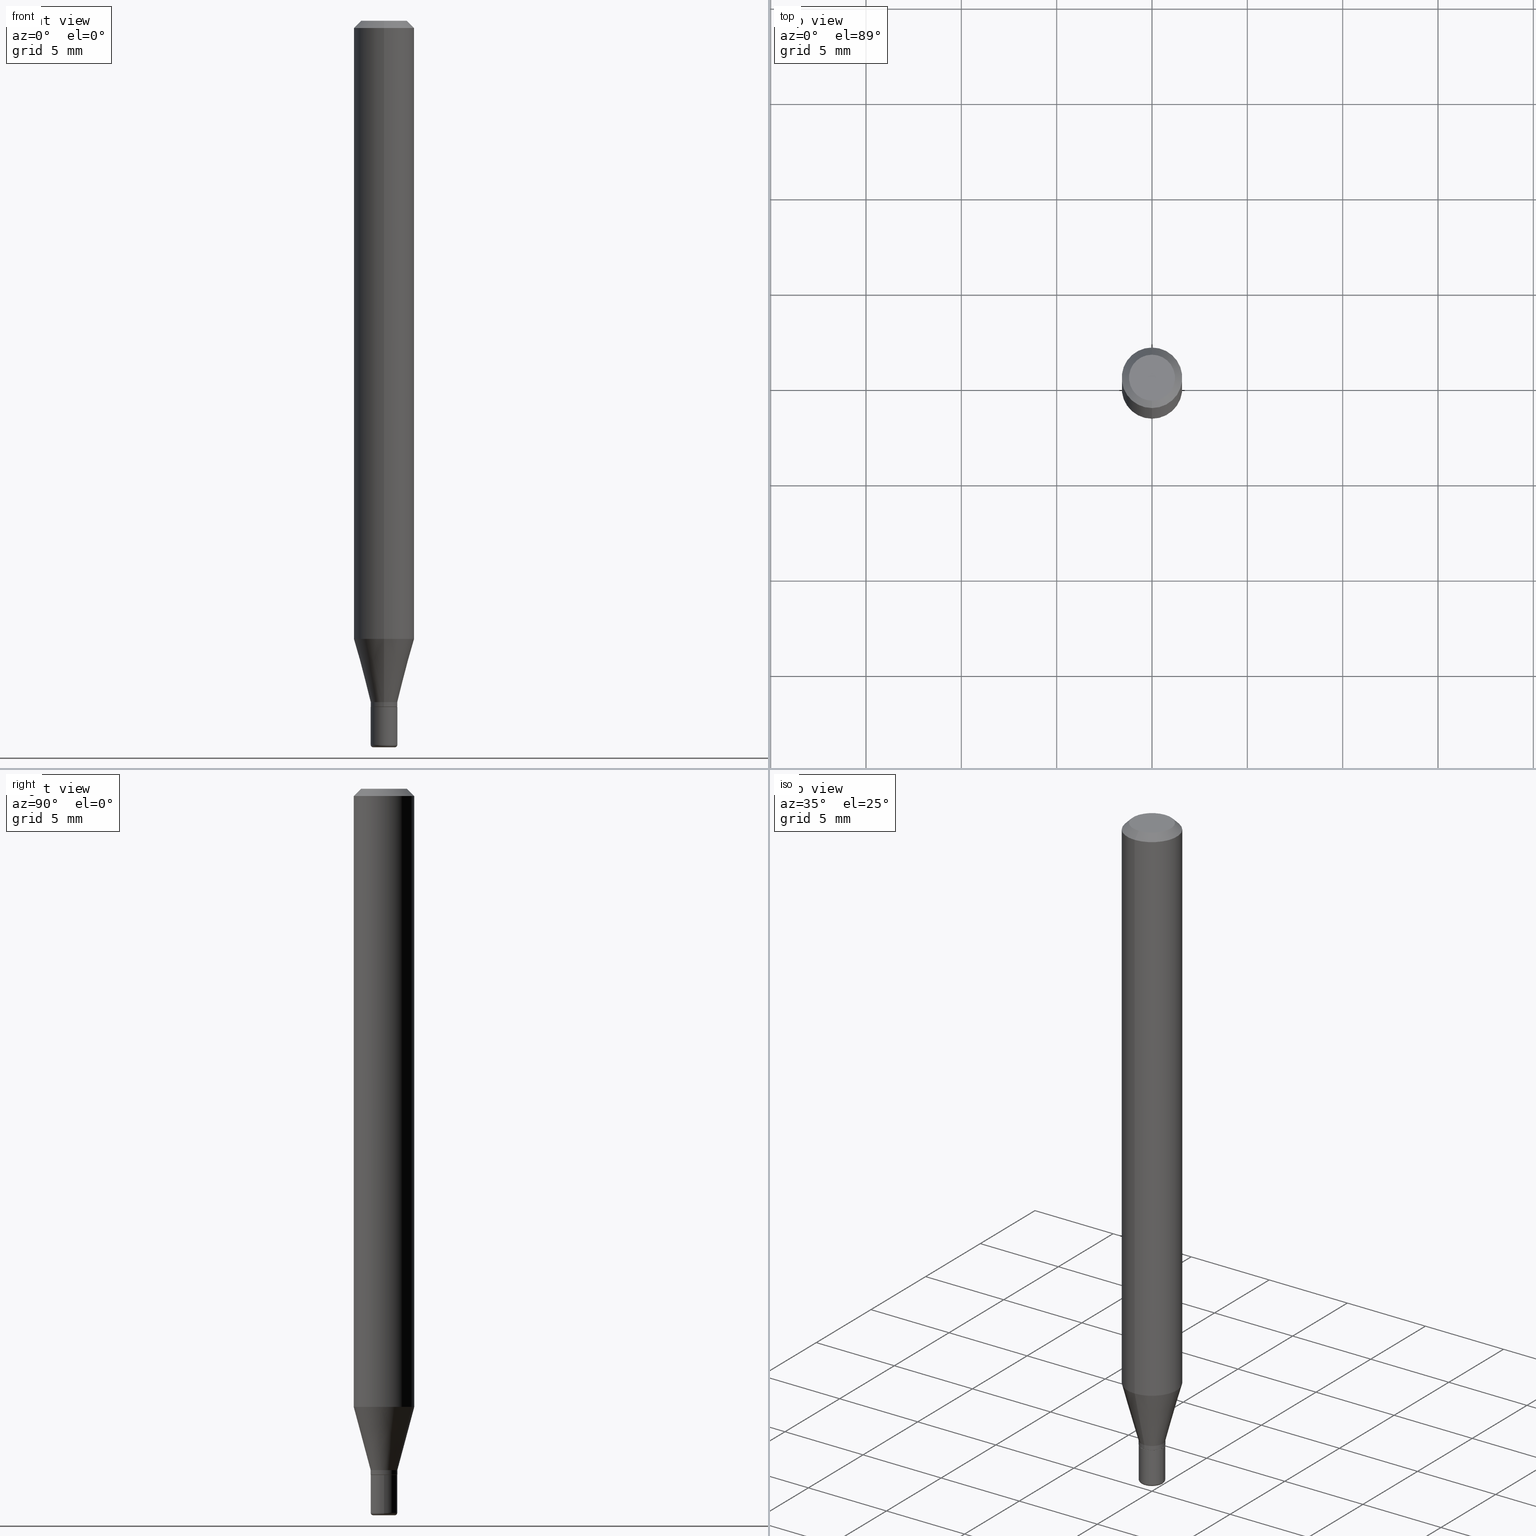
[diagram: canonical four-view strip — front | top / right | iso, engineering-drawing reading convention]
A machine part, canonical four-view strip (front | top / right | iso — engineering-drawing reading convention). The complete STEP part file that produces these views, byte-faithful:
ISO-10303-21;
HEADER;
FILE_DESCRIPTION (( 'STEP AP203' ),
    '1' );
FILE_NAME ('09012.STEP',
    '2024-02-29T21:16:24',
    ( '' ),
    ( '' ),
    'SwSTEP 2.0',
    'SolidWorks 2023',
    '' );
FILE_SCHEMA (( 'CONFIG_CONTROL_DESIGN' ));
ENDSEC;

DATA;
#1 = ORIENTED_EDGE ( 'NONE', *, *, #413, .F. ) ;
#2 = EDGE_CURVE ( 'NONE', #127, #412, #416, .T. ) ;
#3 = VERTEX_POINT ( 'NONE', #237 ) ;
#4 = CARTESIAN_POINT ( 'NONE',  ( 3.668203209277706016E-29, -5.237222008264719754E-15, -1.500000000000000444 ) ) ;
#5 = DIRECTION ( 'NONE',  ( -2.445430594000756604E-29, 3.491536060866079986E-15, 1.000000000000000000 ) ) ;
#6 = CIRCLE ( 'NONE', #402, 0.005000000000000177046 ) ;
#7 = PERSON_AND_ORGANIZATION ( #463, #68 ) ;
#8 = AXIS2_PLACEMENT_3D ( 'NONE', #201, #5, #164 ) ;
#9 = EDGE_LOOP ( 'NONE', ( #145, #168, #55, #333 ) ) ;
#10 = EDGE_LOOP ( 'NONE', ( #25, #407, #152, #192 ) ) ;
#11 = FACE_OUTER_BOUND ( 'NONE', #444, .T. ) ;
#12 = PERSON_AND_ORGANIZATION ( #463, #68 ) ;
#13 = EDGE_LOOP ( 'NONE', ( #247, #183 ) ) ;
#14 = EDGE_CURVE ( 'NONE', #460, #210, #39, .T. ) ;
#15 = EDGE_CURVE ( 'NONE', #295, #341, #83, .T. ) ;
#16 = ORIENTED_EDGE ( 'NONE', *, *, #92, .F. ) ;
#17 = AXIS2_PLACEMENT_3D ( 'NONE', #72, #313, #264 ) ;
#18 = PERSON_AND_ORGANIZATION ( #463, #68 ) ;
#19 = EDGE_CURVE ( 'NONE', #69, #341, #267, .T. ) ;
#20 = FACE_OUTER_BOUND ( 'NONE', #501, .T. ) ;
#21 = DIRECTION ( 'NONE',  ( -6.982962677686265922E-15, -1.000000000000000000, 0.000000000000000000 ) ) ;
#22 = DIRECTION ( 'NONE',  ( 5.024295867788576727E-15, 0.7071067811866224018, 0.7071067811864726327 ) ) ;
#23 = AXIS2_PLACEMENT_3D ( 'NONE', #113, #43, #307 ) ;
#24 = VECTOR ( 'NONE', #337, 39.37007874015748143 ) ;
#25 = ORIENTED_EDGE ( 'NONE', *, *, #468, .F. ) ;
#26 = DIRECTION ( 'NONE',  ( -2.445430594000756604E-29, 3.491536060866079986E-15, 1.000000000000000000 ) ) ;
#27 = ORIENTED_EDGE ( 'NONE', *, *, #496, .T. ) ;
#28 = FACE_OUTER_BOUND ( 'NONE', #375, .T. ) ;
#29 = VERTEX_POINT ( 'NONE', #510 ) ;
#30 = ORIENTED_EDGE ( 'NONE', *, *, #458, .F. ) ;
#31 = DIRECTION ( 'NONE',  ( 6.982962677686265922E-15, 1.000000000000000000, -3.491536060866079986E-15 ) ) ;
#32 = PRODUCT_RELATED_PRODUCT_CATEGORY ( 'detail', '', ( #122 ) ) ;
#33 = DIRECTION ( 'NONE',  ( -2.445468806185136597E-29, 3.491481338843145583E-15, 1.000000000000000000 ) ) ;
#34 = ORIENTED_EDGE ( 'NONE', *, *, #289, .F. ) ;
#35 = ORIENTED_EDGE ( 'NONE', *, *, #420, .T. ) ;
#36 = AXIS2_PLACEMENT_3D ( 'NONE', #273, #121, #359 ) ;
#37 = DIRECTION ( 'NONE',  ( -6.982962677686265922E-15, -1.000000000000000000, 3.491536060866079986E-15 ) ) ;
#38 = AXIS2_PLACEMENT_3D ( 'NONE', #398, #304, #48 ) ;
#39 = LINE ( 'NONE', #384, #171 ) ;
#40 = CARTESIAN_POINT ( 'NONE',  ( 3.197442310920783026E-16, 0.02749999999999518802, -1.407000000000000250 ) ) ;
#41 = FACE_OUTER_BOUND ( 'NONE', #453, .T. ) ;
#42 = CARTESIAN_POINT ( 'NONE',  ( -4.364351673553605587E-16, -0.06250000000000449640, -1.276378221735089857 ) ) ;
#43 = DIRECTION ( 'NONE',  ( -2.438088387897960049E-29, 3.491481338843145188E-15, 1.000000000000000000 ) ) ;
#44 = CARTESIAN_POINT ( 'NONE',  ( 3.668203209277706016E-29, -5.237222008264719754E-15, -1.500000000000000444 ) ) ;
#45 = CC_DESIGN_SECURITY_CLASSIFICATION ( #340, ( #179 ) ) ;
#46 = PERSON_AND_ORGANIZATION_ROLE ( 'creator' ) ;
#47 = ORIENTED_EDGE ( 'NONE', *, *, #19, .F. ) ;
#48 = DIRECTION ( 'NONE',  ( 6.982962677686265922E-15, 1.000000000000000000, -3.483106191921935554E-15 ) ) ;
#49 = ORIENTED_EDGE ( 'NONE', *, *, #315, .T. ) ;
#50 = EDGE_LOOP ( 'NONE', ( #287, #405, #484, #285 ) ) ;
#51 = MANIFOLD_SOLID_BREP ( 'Body-Move/Copy2[2]', #391 ) ;
#52 = AXIS2_PLACEMENT_3D ( 'NONE', #290, #382, #417 ) ;
#53 = ADVANCED_FACE ( 'NONE', ( #338 ), #366, .T. ) ;
#54 = ORIENTED_EDGE ( 'NONE', *, *, #2, .F. ) ;
#55 = ORIENTED_EDGE ( 'NONE', *, *, #14, .T. ) ;
#56 = DIRECTION ( 'NONE',  ( -6.982962677686265133E-15, -1.000000000000000000, 3.491536060866079986E-15 ) ) ;
#57 = ORIENTED_EDGE ( 'NONE', *, *, #301, .F. ) ;
#58 = VECTOR ( 'NONE', #255, 39.37007874015748143 ) ;
#59 = AXIS2_PLACEMENT_3D ( 'NONE', #327, #328, #334 ) ;
#60 = DIRECTION ( 'NONE',  ( 1.839019923739596371E-15, 0.2588190451025244032, 0.9659258262890673130 ) ) ;
#61 = ORIENTED_EDGE ( 'NONE', *, *, #332, .F. ) ;
#62 = ADVANCED_FACE ( 'NONE', ( #28 ), #426, .F. ) ;
#63 = COORDINATED_UNIVERSAL_TIME_OFFSET ( 5, 0, .BEHIND. ) ;
#64 = LINE ( 'NONE', #176, #284 ) ;
#65 = ORIENTED_EDGE ( 'NONE', *, *, #468, .T. ) ;
#66 = CARTESIAN_POINT ( 'NONE',  ( 0.02249999999999999917, -5.376881261818443984E-15, -1.495000000000000107 ) ) ;
#67 = AXIS2_PLACEMENT_3D ( 'NONE', #279, #442, #349 ) ;
#68 = ORGANIZATION ( 'UNSPECIFIED', 'UNSPECIFIED', '' ) ;
#69 = VERTEX_POINT ( 'NONE', #155 ) ;
#70 = CARTESIAN_POINT ( 'NONE',  ( 3.316907271900976589E-16, 0.04750000000000000749, -2.925426355988096927E-17 ) ) ;
#71 = ORIENTED_EDGE ( 'NONE', *, *, #342, .T. ) ;
#72 = CARTESIAN_POINT ( 'NONE',  ( 3.465175151699072961E-29, -4.947506598247235895E-15, -1.417000000000000259 ) ) ;
#73 = FACE_OUTER_BOUND ( 'NONE', #187, .T. ) ;
#74 = ORIENTED_EDGE ( 'NONE', *, *, #514, .F. ) ;
#75 = CARTESIAN_POINT ( 'NONE',  ( 0.000000000000000000, 0.000000000000000000, 0.000000000000000000 ) ) ;
#76 = LINE ( 'NONE', #511, #24 ) ;
#77 = CONICAL_SURFACE ( 'NONE', #354, 0.02700000000000008990, 0.7853981633975507526 ) ;
#78 = DIRECTION ( 'NONE',  ( 4.937700262164550409E-15, 0.7071067811865454633, -0.7071067811865495711 ) ) ;
#79 = VECTOR ( 'NONE', #370, 39.37007874015748143 ) ;
#80 = DIRECTION ( 'NONE',  ( -6.982962677686265922E-15, -1.000000000000000000, 4.370956789862821150E-15 ) ) ;
#81 = APPLICATION_PROTOCOL_DEFINITION ( 'international standard', 'config_control_design', 1994, #380 ) ;
#82 = DIRECTION ( 'NONE',  ( -2.445430594000756604E-29, 3.491536060866079986E-15, 1.000000000000000000 ) ) ;
#83 = CIRCLE ( 'NONE', #215, 0.02750000000000000014 ) ;
#84 = AXIS2_PLACEMENT_3D ( 'NONE', #125, #362, #270 ) ;
#85 = ADVANCED_FACE ( 'NONE', ( #117 ), #299, .F. ) ;
#86 = COORDINATED_UNIVERSAL_TIME_OFFSET ( 5, 0, .BEHIND. ) ;
#87 = APPROVAL_DATE_TIME ( #274, #105 ) ;
#88 = CIRCLE ( 'NONE', #172, 0.02249999999999999917 ) ;
#89 = APPROVAL_PERSON_ORGANIZATION ( #90, #105, #132 ) ;
#90 = PERSON_AND_ORGANIZATION ( #463, #68 ) ;
#91 = COORDINATED_UNIVERSAL_TIME_OFFSET ( 5, 0, .BEHIND. ) ;
#92 = EDGE_CURVE ( 'NONE', #210, #300, #409, .T. ) ;
#93 = ORIENTED_EDGE ( 'NONE', *, *, #332, .T. ) ;
#94 = ORIENTED_EDGE ( 'NONE', *, *, #326, .F. ) ;
#95 = CYLINDRICAL_SURFACE ( 'NONE', #229, 0.02750000000000009381 ) ;
#96 = CC_DESIGN_PERSON_AND_ORGANIZATION_ASSIGNMENT ( #440, #46, ( #218 ) ) ;
#97 = VECTOR ( 'NONE', #504, 39.37007874015748143 ) ;
#98 =( GEOMETRIC_REPRESENTATION_CONTEXT ( 3 ) GLOBAL_UNCERTAINTY_ASSIGNED_CONTEXT ( ( #480 ) ) GLOBAL_UNIT_ASSIGNED_CONTEXT ( ( #350, #331, #500 ) ) REPRESENTATION_CONTEXT ( 'NONE', 'WORKASPACE' ) );
#99 = CARTESIAN_POINT ( 'NONE',  ( 0.000000000000000000, 0.000000000000000000, 0.000000000000000000 ) ) ;
#100 = ORIENTED_EDGE ( 'NONE', *, *, #420, .F. ) ;
#101 = ORIENTED_EDGE ( 'NONE', *, *, #315, .F. ) ;
#102 = DIRECTION ( 'NONE',  ( -2.445430594000756604E-29, 3.491536060866079986E-15, 1.000000000000000000 ) ) ;
#103 = DIRECTION ( 'NONE',  ( -6.982962677686266711E-15, -1.000000000000000000, 3.491481338843145583E-15 ) ) ;
#104 = CIRCLE ( 'NONE', #67, 0.02700000000000008990 ) ;
#105 = APPROVAL ( #283, 'UNSPECIFIED' ) ;
#106 = AXIS2_PLACEMENT_3D ( 'NONE', #363, #443, #478 ) ;
#107 = EDGE_LOOP ( 'NONE', ( #288, #410, #249, #466 ) ) ;
#108 = PLANE ( 'NONE',  #23 ) ;
#109 = DIRECTION ( 'NONE',  ( -2.445468806185136877E-29, 3.491481338843145188E-15, 1.000000000000000000 ) ) ;
#110 = MECHANICAL_CONTEXT ( 'NONE', #353, 'mechanical' ) ;
#111 = ORIENTED_EDGE ( 'NONE', *, *, #487, .T. ) ;
#112 = CARTESIAN_POINT ( 'NONE',  ( 3.121294352947271475E-29, -4.456520588492188599E-15, -1.276378221735090079 ) ) ;
#113 = CARTESIAN_POINT ( 'NONE',  ( 3.582686580359767159E-29, -5.359686688179454114E-15, -1.500000000000000444 ) ) ;
#114 = CARTESIAN_POINT ( 'NONE',  ( 3.655975865246779122E-29, -5.219764601570503141E-15, -1.495000000000000107 ) ) ;
#115 = VECTOR ( 'NONE', #60, 39.37007874015748143 ) ;
#116 = CARTESIAN_POINT ( 'NONE',  ( 3.440720845759065849E-29, -4.912591237638575836E-15, -1.407000000000000250 ) ) ;
#117 = FACE_OUTER_BOUND ( 'NONE', #464, .T. ) ;
#118 = LENGTH_MEASURE_WITH_UNIT ( LENGTH_MEASURE( 0.02539999999999999897 ), #208 );
#119 = CARTESIAN_POINT ( 'NONE',  ( -0.02750000000000000014, -4.888197577021592222E-15, -1.417000000000000259 ) ) ;
#120 = CYLINDRICAL_SURFACE ( 'NONE', #84, 0.02750000000000009034 ) ;
#121 = DIRECTION ( 'NONE',  ( -2.445430594000756604E-29, 3.491536060866079986E-15, 1.000000000000000000 ) ) ;
#122 = PRODUCT ( '09012', '09012', '', ( #110 ) ) ;
#123 = FACE_OUTER_BOUND ( 'NONE', #381, .T. ) ;
#124 = ADVANCED_FACE ( 'NONE', ( #73 ), #309, .F. ) ;
#125 = CARTESIAN_POINT ( 'NONE',  ( 0.000000000000000000, 0.000000000000000000, 0.000000000000000000 ) ) ;
#126 = CIRCLE ( 'NONE', #329, 0.04750000000000000749 ) ;
#127 = VERTEX_POINT ( 'NONE', #230 ) ;
#128 = APPROVAL_ROLE ( '' ) ;
#129 = DIRECTION ( 'NONE',  ( 1.000000000000000000, -6.982962677686269077E-15, 0.000000000000000000 ) ) ;
#130 = DIRECTION ( 'NONE',  ( -2.445430594000756604E-29, 3.491536060866079986E-15, 1.000000000000000000 ) ) ;
#131 = ORIENTED_EDGE ( 'NONE', *, *, #514, .T. ) ;
#132 = APPROVAL_ROLE ( '' ) ;
#133 = VERTEX_POINT ( 'NONE', #395 ) ;
#134 = VECTOR ( 'NONE', #78, 39.37007874015748143 ) ;
#135 = ORIENTED_EDGE ( 'NONE', *, *, #246, .T. ) ;
#136 = CC_DESIGN_APPROVAL ( #105, ( #179 ) ) ;
#137 = ORIENTED_EDGE ( 'NONE', *, *, #232, .T. ) ;
#138 = CC_DESIGN_PERSON_AND_ORGANIZATION_ASSIGNMENT ( #206, #243, ( #179 ) ) ;
#139 = DIRECTION ( 'NONE',  ( -6.982962677686265922E-15, -1.000000000000000000, 3.491536060866080381E-15 ) ) ;
#140 = CALENDAR_DATE ( 2024, 29, 2 ) ;
#141 = DIRECTION ( 'NONE',  ( -2.445430594000756604E-29, 3.491536060866079986E-15, 1.000000000000000000 ) ) ;
#142 = ORIENTED_EDGE ( 'NONE', *, *, #314, .T. ) ;
#143 = APPROVAL_STATUS ( 'not_yet_approved' ) ;
#144 = APPROVAL_PERSON_ORGANIZATION ( #18, #336, #214 ) ;
#145 = ORIENTED_EDGE ( 'NONE', *, *, #263, .F. ) ;
#146 = FACE_OUTER_BOUND ( 'NONE', #281, .T. ) ;
#147 = VERTEX_POINT ( 'NONE', #305 ) ;
#148 = DIRECTION ( 'NONE',  ( -6.982962677686265922E-15, -1.000000000000000000, 3.491536060866079986E-15 ) ) ;
#149 = DIRECTION ( 'NONE',  ( -6.982962677686265922E-15, -1.000000000000000000, 3.491536060866079986E-15 ) ) ;
#150 = EDGE_CURVE ( 'NONE', #3, #295, #195, .T. ) ;
#151 = APPLICATION_PROTOCOL_DEFINITION ( 'international standard', 'config_control_design', 1994, #353 ) ;
#152 = ORIENTED_EDGE ( 'NONE', *, *, #406, .T. ) ;
#153 = DIRECTION ( 'NONE',  ( -2.445468806185136597E-29, 3.491481338843145583E-15, 1.000000000000000000 ) ) ;
#154 = VECTOR ( 'NONE', #280, 39.37007874015748143 ) ;
#155 = CARTESIAN_POINT ( 'NONE',  ( -0.02750000000000017708, -4.888197577021591433E-15, -1.494999999999999662 ) ) ;
#156 = FACE_OUTER_BOUND ( 'NONE', #107, .T. ) ;
#157 = ORIENTED_EDGE ( 'NONE', *, *, #263, .T. ) ;
#158 = CC_DESIGN_PERSON_AND_ORGANIZATION_ASSIGNMENT ( #12, #446, ( #340 ) ) ;
#159 = CARTESIAN_POINT ( 'NONE',  ( 3.655975865246778562E-29, -5.219764601570502352E-15, -1.494999999999999662 ) ) ;
#160 = AXIS2_PLACEMENT_3D ( 'NONE', #419, #182, #462 ) ;
#161 = CARTESIAN_POINT ( 'NONE',  ( -1.920314736363729607E-16, -0.02750000000000009381, 9.601724167381753933E-17 ) ) ;
#162 = CALENDAR_DATE ( 2024, 29, 2 ) ;
#163 = ORIENTED_EDGE ( 'NONE', *, *, #221, .F. ) ;
#164 = DIRECTION ( 'NONE',  ( -6.982962677686265922E-15, -1.000000000000000000, 3.483106191921935554E-15 ) ) ;
#165 = LOCAL_TIME ( 16, 16, 24.00000000000000000, #86 ) ;
#166 = CALENDAR_DATE ( 2024, 29, 2 ) ;
#167 = CARTESIAN_POINT ( 'NONE',  ( -3.773273898774340269E-16, -0.04750000000000000749, 4.390353615536545300E-16 ) ) ;
#168 = ORIENTED_EDGE ( 'NONE', *, *, #458, .T. ) ;
#169 = CALENDAR_DATE ( 2024, 29, 2 ) ;
#170 = DIMENSIONAL_EXPONENTS ( 1.000000000000000000, 0.000000000000000000, 0.000000000000000000, 0.000000000000000000, 0.000000000000000000, 0.000000000000000000, 0.000000000000000000 ) ;
#171 = VECTOR ( 'NONE', #194, 39.37007874015748854 ) ;
#172 = AXIS2_PLACEMENT_3D ( 'NONE', #44, #231, #479 ) ;
#173 = ADVANCED_FACE ( 'NONE', ( #262 ), #438, .T. ) ;
#174 = EDGE_CURVE ( 'NONE', #147, #3, #311, .T. ) ;
#175 = CARTESIAN_POINT ( 'NONE',  ( 4.440892098500935790E-16, 0.06249999999999551747, -1.276378221735090301 ) ) ;
#176 = CARTESIAN_POINT ( 'NONE',  ( 1.918465386552623249E-16, 0.02699999999999514247, -1.417000000000000259 ) ) ;
#177 = CARTESIAN_POINT ( 'NONE',  ( 1.953992523340281931E-16, 0.02750000000000009381, -9.601724167381753933E-17 ) ) ;
#178 = CIRCLE ( 'NONE', #36, 0.06250000000000000000 ) ;
#179 = PRODUCT_DEFINITION_FORMATION_WITH_SPECIFIED_SOURCE ( 'ANY', '', #122, .NOT_KNOWN. ) ;
#180 = ORIENTED_EDGE ( 'NONE', *, *, #301, .T. ) ;
#181 = ADVANCED_FACE ( 'NONE', ( #276 ), #120, .T. ) ;
#182 = DIRECTION ( 'NONE',  ( -2.445468806185136597E-29, 3.491481338843145583E-15, 1.000000000000000000 ) ) ;
#183 = ORIENTED_EDGE ( 'NONE', *, *, #232, .F. ) ;
#184 = DIRECTION ( 'NONE',  ( -6.982962677686265922E-15, -1.000000000000000000, 0.000000000000000000 ) ) ;
#185 = PERSON_AND_ORGANIZATION ( #463, #68 ) ;
#186 = CARTESIAN_POINT ( 'NONE',  ( 3.465229298364339647E-29, -4.947429057140738329E-15, -1.417000000000000259 ) ) ;
#187 = EDGE_LOOP ( 'NONE', ( #163, #61 ) ) ;
#188 = DIRECTION ( 'NONE',  ( 1.000000000000000000, -6.982962677686270655E-15, 0.000000000000000000 ) ) ;
#189 = AXIS2_PLACEMENT_3D ( 'NONE', #378, #26, #184 ) ;
#190 = DIRECTION ( 'NONE',  ( 1.000000000000000000, -6.982962677686279332E-15, 0.000000000000000000 ) ) ;
#191 = AXIS2_PLACEMENT_3D ( 'NONE', #186, #33, #190 ) ;
#192 = ORIENTED_EDGE ( 'NONE', *, *, #291, .T. ) ;
#193 = CARTESIAN_POINT ( 'NONE',  ( 4.440892098500625669E-16, 0.06250000000000000000, -2.182210038041299992E-16 ) ) ;
#194 = DIRECTION ( 'NONE',  ( -1.807323732225326195E-15, -0.2588190451025176309, 0.9659258262890690894 ) ) ;
#195 = LINE ( 'NONE', #265, #483 ) ;
#196 = DIRECTION ( 'NONE',  ( -2.445430594000756604E-29, 3.491536060866079986E-15, 1.000000000000000000 ) ) ;
#197 = CARTESIAN_POINT ( 'NONE',  ( 3.840629472727447874E-16, 0.04750000000000000749, 1.073394357713768884E-16 ) ) ;
#198 = CIRCLE ( 'NONE', #450, 0.02249999999999999917 ) ;
#199 = AXIS2_PLACEMENT_3D ( 'NONE', #275, #439, #203 ) ;
#200 = DIRECTION ( 'NONE',  ( -2.445430594000756604E-29, 3.491536060866079986E-15, 1.000000000000000000 ) ) ;
#201 = CARTESIAN_POINT ( 'NONE',  ( 3.668145891001062423E-31, -5.237304091299016762E-17, -0.01499999999999970281 ) ) ;
#202 = COORDINATED_UNIVERSAL_TIME_OFFSET ( 5, 0, .BEHIND. ) ;
#203 = DIRECTION ( 'NONE',  ( -6.982962677686265922E-15, -1.000000000000000000, 0.000000000000000000 ) ) ;
#204 = LINE ( 'NONE', #277, #115 ) ;
#205 = EDGE_LOOP ( 'NONE', ( #318, #297, #316, #456 ) ) ;
#206 = PERSON_AND_ORGANIZATION ( #463, #68 ) ;
#207 = CIRCLE ( 'NONE', #52, 0.02750000000000009034 ) ;
#208 =( LENGTH_UNIT ( ) NAMED_UNIT ( * ) SI_UNIT ( $, .METRE. ) );
#209 = CIRCLE ( 'NONE', #199, 0.02750000000000010075 ) ;
#210 = VERTEX_POINT ( 'NONE', #42 ) ;
#211 = SHAPE_DEFINITION_REPRESENTATION ( #360, #226 ) ;
#212 = VERTEX_POINT ( 'NONE', #197 ) ;
#213 = EDGE_CURVE ( 'NONE', #147, #482, #198, .T. ) ;
#214 = APPROVAL_ROLE ( '' ) ;
#215 = AXIS2_PLACEMENT_3D ( 'NONE', #345, #343, #508 ) ;
#216 = CARTESIAN_POINT ( 'NONE',  ( 3.463952436402072633E-29, -4.945760830216803404E-15, -1.416500000000000314 ) ) ;
#217 = TOROIDAL_SURFACE ( 'NONE', #252, 0.02249999999999999917, 0.005000000000000179648 ) ;
#218 = PRODUCT_DEFINITION ( 'UNKNOWN', '', #179, #367 ) ;
#219 = DATE_AND_TIME ( #140, #424 ) ;
#220 = MANIFOLD_SOLID_BREP ( 'Body-Move/Copy2[1]', #352 ) ;
#221 = EDGE_CURVE ( 'NONE', #225, #29, #104, .T. ) ;
#222 = DIRECTION ( 'NONE',  ( -2.445430594000756604E-29, 3.491536060866079986E-15, 1.000000000000000000 ) ) ;
#223 = CIRCLE ( 'NONE', #292, 0.02750000000000017708 ) ;
#224 = CIRCLE ( 'NONE', #106, 0.02750000000000017708 ) ;
#225 = VERTEX_POINT ( 'NONE', #400 ) ;
#226 = ADVANCED_BREP_SHAPE_REPRESENTATION ( '09012', ( #220, #51, #515 ), #98 ) ;
#227 = CARTESIAN_POINT ( 'NONE',  ( -0.02750000000000009034, 1.953992523340281931E-16, -1.352707149820103385E-30 ) ) ;
#228 = DIRECTION ( 'NONE',  ( -2.445430594000756604E-29, 3.491536060866079986E-15, 1.000000000000000000 ) ) ;
#229 = AXIS2_PLACEMENT_3D ( 'NONE', #461, #102, #374 ) ;
#230 = CARTESIAN_POINT ( 'NONE',  ( 1.953992523340621634E-16, 0.02749999999999504924, -1.416500000000000314 ) ) ;
#231 = DIRECTION ( 'NONE',  ( -2.445468806185136597E-29, 3.491481338843145583E-15, 1.000000000000000000 ) ) ;
#232 = EDGE_CURVE ( 'NONE', #482, #147, #88, .T. ) ;
#233 = APPROVAL_STATUS ( 'not_yet_approved' ) ;
#234 = AXIS2_PLACEMENT_3D ( 'NONE', #467, #196, #509 ) ;
#235 = DIRECTION ( 'NONE',  ( -2.445430594000756604E-29, 3.491536060866079986E-15, 1.000000000000000000 ) ) ;
#236 = CARTESIAN_POINT ( 'NONE',  ( -1.920314736363389411E-16, -0.02750000000000513145, -1.416500000000000314 ) ) ;
#237 = CARTESIAN_POINT ( 'NONE',  ( 0.02750000000000017708, -5.411796075206875633E-15, -1.494999999999999662 ) ) ;
#238 = CARTESIAN_POINT ( 'NONE',  ( -1.885399922974951451E-16, -0.02700000000000503733, -1.417000000000000259 ) ) ;
#239 = VERTEX_POINT ( 'NONE', #236 ) ;
#240 = PERSON_AND_ORGANIZATION_ROLE ( 'design_supplier' ) ;
#241 = AXIS2_PLACEMENT_3D ( 'NONE', #216, #82, #397 ) ;
#242 = AXIS2_PLACEMENT_3D ( 'NONE', #66, #103, #258 ) ;
#243 = PERSON_AND_ORGANIZATION_ROLE ( 'creator' ) ;
#244 = DATE_AND_TIME ( #169, #498 ) ;
#245 = VERTEX_POINT ( 'NONE', #167 ) ;
#246 = EDGE_CURVE ( 'NONE', #245, #212, #126, .T. ) ;
#247 = ORIENTED_EDGE ( 'NONE', *, *, #213, .F. ) ;
#248 = ADVANCED_FACE ( 'NONE', ( #156 ), #217, .T. ) ;
#249 = ORIENTED_EDGE ( 'NONE', *, *, #342, .F. ) ;
#250 = CARTESIAN_POINT ( 'NONE',  ( -6.680608225847972664E-45, 9.538436538043716084E-31, 2.731873986625157031E-16 ) ) ;
#251 = EDGE_LOOP ( 'NONE', ( #54, #49, #306, #30 ) ) ;
#252 = AXIS2_PLACEMENT_3D ( 'NONE', #114, #351, #473 ) ;
#253 = EDGE_CURVE ( 'NONE', #300, #210, #178, .T. ) ;
#254 = FACE_OUTER_BOUND ( 'NONE', #50, .T. ) ;
#255 = DIRECTION ( 'NONE',  ( -2.445430594000756604E-29, 3.491536060866079986E-15, 1.000000000000000000 ) ) ;
#256 = ORIENTED_EDGE ( 'NONE', *, *, #150, .T. ) ;
#257 = ORIENTED_EDGE ( 'NONE', *, *, #150, .F. ) ;
#258 = DIRECTION ( 'NONE',  ( 1.000000000000000000, -6.982962677686280121E-15, 0.000000000000000000 ) ) ;
#259 = CIRCLE ( 'NONE', #59, 0.06250000000000000000 ) ;
#260 = AXIS2_PLACEMENT_3D ( 'NONE', #116, #269, #21 ) ;
#261 = FACE_OUTER_BOUND ( 'NONE', #371, .T. ) ;
#262 = FACE_OUTER_BOUND ( 'NONE', #491, .T. ) ;
#263 = EDGE_CURVE ( 'NONE', #412, #300, #204, .T. ) ;
#264 = DIRECTION ( 'NONE',  ( -6.982962677686265922E-15, -1.000000000000000000, 0.000000000000000000 ) ) ;
#265 = CARTESIAN_POINT ( 'NONE',  ( 0.02750000000000009034, -1.920314736363729607E-16, 1.340948613343886617E-30 ) ) ;
#266 = LINE ( 'NONE', #430, #134 ) ;
#267 = LINE ( 'NONE', #227, #97 ) ;
#268 = AXIS2_PLACEMENT_3D ( 'NONE', #75, #228, #37 ) ;
#269 = DIRECTION ( 'NONE',  ( -2.445430594000756604E-29, 3.491536060866079986E-15, 1.000000000000000000 ) ) ;
#270 = DIRECTION ( 'NONE',  ( 1.000000000000000000, -6.982962677686266711E-15, 4.876176775795935232E-29 ) ) ;
#271 = ADVANCED_FACE ( 'NONE', ( #254 ), #495, .T. ) ;
#272 = DIRECTION ( 'NONE',  ( -6.982962677686265922E-15, -1.000000000000000000, 0.000000000000000000 ) ) ;
#273 = CARTESIAN_POINT ( 'NONE',  ( 3.121294352947271475E-29, -4.456520588492188599E-15, -1.276378221735090079 ) ) ;
#274 = DATE_AND_TIME ( #162, #451 ) ;
#275 = CARTESIAN_POINT ( 'NONE',  ( 3.440720845759065849E-29, -4.912591237638575836E-15, -1.407000000000000250 ) ) ;
#276 = FACE_OUTER_BOUND ( 'NONE', #452, .T. ) ;
#277 = CARTESIAN_POINT ( 'NONE',  ( 1.953992523340626318E-16, 0.02749999999999518802, -1.407000000000000250 ) ) ;
#278 = ADVANCED_FACE ( 'NONE', ( #298 ), #423, .T. ) ;
#279 = CARTESIAN_POINT ( 'NONE',  ( 3.465175151699072961E-29, -4.947506598247235895E-15, -1.417000000000000259 ) ) ;
#280 = DIRECTION ( 'NONE',  ( -4.937700262165053702E-15, -0.7071067811866175168, 0.7071067811864775177 ) ) ;
#281 = EDGE_LOOP ( 'NONE', ( #71, #489, #361, #257 ) ) ;
#282 = LINE ( 'NONE', #448, #79 ) ;
#283 = APPROVAL_STATUS ( 'not_yet_approved' ) ;
#284 = VECTOR ( 'NONE', #22, 39.37007874015748143 ) ;
#285 = ORIENTED_EDGE ( 'NONE', *, *, #455, .F. ) ;
#286 = ADVANCED_FACE ( 'NONE', ( #20 ), #95, .T. ) ;
#287 = ORIENTED_EDGE ( 'NONE', *, *, #92, .T. ) ;
#288 = ORIENTED_EDGE ( 'NONE', *, *, #213, .T. ) ;
#289 = EDGE_CURVE ( 'NONE', #239, #127, #207, .T. ) ;
#290 = CARTESIAN_POINT ( 'NONE',  ( 3.463952436402072633E-29, -4.945760830216803404E-15, -1.416500000000000314 ) ) ;
#291 = EDGE_CURVE ( 'NONE', #324, #133, #259, .T. ) ;
#292 = AXIS2_PLACEMENT_3D ( 'NONE', #159, #434, #188 ) ;
#293 = ORIENTED_EDGE ( 'NONE', *, *, #379, .F. ) ;
#294 = CONICAL_SURFACE ( 'NONE', #330, 0.02750000000000010075, 0.2617993877991496854 ) ;
#295 = VERTEX_POINT ( 'NONE', #499 ) ;
#296 = CARTESIAN_POINT ( 'NONE',  ( 0.000000000000000000, 0.000000000000000000, 0.000000000000000000 ) ) ;
#297 = ORIENTED_EDGE ( 'NONE', *, *, #253, .T. ) ;
#298 = FACE_OUTER_BOUND ( 'NONE', #251, .T. ) ;
#299 = PLANE ( 'NONE',  #392 ) ;
#300 = VERTEX_POINT ( 'NONE', #175 ) ;
#301 = EDGE_CURVE ( 'NONE', #29, #127, #64, .T. ) ;
#302 = DIRECTION ( 'NONE',  ( 1.000000000000000000, -6.982962677686266711E-15, 4.876176775795935232E-29 ) ) ;
#303 = AXIS2_PLACEMENT_3D ( 'NONE', #112, #387, #80 ) ;
#304 = DIRECTION ( 'NONE',  ( 2.445430594000756604E-29, -3.491536060866079986E-15, -1.000000000000000000 ) ) ;
#305 = CARTESIAN_POINT ( 'NONE',  ( 0.02249999999999999917, -5.394338668512660598E-15, -1.500000000000000444 ) ) ;
#306 = ORIENTED_EDGE ( 'NONE', *, *, #379, .T. ) ;
#307 = DIRECTION ( 'NONE',  ( 1.000000000000000000, -6.982962677686265922E-15, 4.876176775795935793E-29 ) ) ;
#308 = CARTESIAN_POINT ( 'NONE',  ( -0.02249999999999999917, -5.059892486024480852E-15, -1.495000000000000107 ) ) ;
#309 = PLANE ( 'NONE',  #422 ) ;
#310 = ADVANCED_FACE ( 'NONE', ( #146 ), #457, .T. ) ;
#311 = CIRCLE ( 'NONE', #242, 0.005000000000000177046 ) ;
#312 = CONICAL_SURFACE ( 'NONE', #38, 0.06250000000000000000, 0.7853981633974488341 ) ;
#313 = DIRECTION ( 'NONE',  ( -2.445430594000756604E-29, 3.491536060866079986E-15, 1.000000000000000000 ) ) ;
#314 = EDGE_CURVE ( 'NONE', #212, #245, #492, .T. ) ;
#315 = EDGE_CURVE ( 'NONE', #127, #239, #472, .T. ) ;
#316 = ORIENTED_EDGE ( 'NONE', *, *, #455, .T. ) ;
#317 = COORDINATED_UNIVERSAL_TIME_OFFSET ( 5, 0, .BEHIND. ) ;
#318 = ORIENTED_EDGE ( 'NONE', *, *, #393, .F. ) ;
#319 = CIRCLE ( 'NONE', #8, 0.06250000000000000000 ) ;
#320 = CARTESIAN_POINT ( 'NONE',  ( 3.440720845759065849E-29, -4.912591237638575836E-15, -1.407000000000000250 ) ) ;
#321 = DATE_AND_TIME ( #166, #165 ) ;
#322 = ORIENTED_EDGE ( 'NONE', *, *, #174, .T. ) ;
#323 = ADVANCED_FACE ( 'NONE', ( #41 ), #414, .T. ) ;
#324 = VERTEX_POINT ( 'NONE', #348 ) ;
#325 = AXIS2_PLACEMENT_3D ( 'NONE', #70, #425, #31 ) ;
#326 = EDGE_CURVE ( 'NONE', #482, #69, #6, .T. ) ;
#327 = CARTESIAN_POINT ( 'NONE',  ( 3.668145891001062423E-31, -5.237304091299016762E-17, -0.01499999999999970281 ) ) ;
#328 = DIRECTION ( 'NONE',  ( -2.445430594000756604E-29, 3.491536060866079986E-15, 1.000000000000000000 ) ) ;
#329 = AXIS2_PLACEMENT_3D ( 'NONE', #459, #235, #516 ) ;
#330 = AXIS2_PLACEMENT_3D ( 'NONE', #320, #130, #272 ) ;
#331 =( NAMED_UNIT ( * ) PLANE_ANGLE_UNIT ( ) SI_UNIT ( $, .RADIAN. ) );
#332 = EDGE_CURVE ( 'NONE', #29, #225, #465, .T. ) ;
#333 = ORIENTED_EDGE ( 'NONE', *, *, #253, .F. ) ;
#334 = DIRECTION ( 'NONE',  ( -6.982962677686265922E-15, -1.000000000000000000, 3.483106191921935554E-15 ) ) ;
#335 = DIRECTION ( 'NONE',  ( -1.000000000000000000, 6.982962677686265922E-15, -4.876176775795935793E-29 ) ) ;
#336 = APPROVAL ( #143, 'UNSPECIFIED' ) ;
#337 = DIRECTION ( 'NONE',  ( -2.445430594000756604E-29, 3.491536060866079986E-15, 1.000000000000000000 ) ) ;
#338 = FACE_OUTER_BOUND ( 'NONE', #9, .T. ) ;
#339 = VECTOR ( 'NONE', #394, 39.37007874015748143 ) ;
#340 = SECURITY_CLASSIFICATION ( '', '', #364 ) ;
#341 = VERTEX_POINT ( 'NONE', #119 ) ;
#342 = EDGE_CURVE ( 'NONE', #3, #69, #223, .T. ) ;
#343 = DIRECTION ( 'NONE',  ( -2.445468806185136597E-29, 3.491481338843145583E-15, 1.000000000000000000 ) ) ;
#344 = CC_DESIGN_DATE_AND_TIME_ASSIGNMENT ( #244, #408, ( #340 ) ) ;
#345 = CARTESIAN_POINT ( 'NONE',  ( 3.465229298364339647E-29, -4.947429057140738329E-15, -1.417000000000000259 ) ) ;
#346 = FACE_OUTER_BOUND ( 'NONE', #10, .T. ) ;
#347 = DIRECTION ( 'NONE',  ( 6.982962677686265922E-15, 1.000000000000000000, -3.483106191921935554E-15 ) ) ;
#348 = CARTESIAN_POINT ( 'NONE',  ( 4.440892098500940720E-16, 0.06249999999999995143, -0.01499999999999992138 ) ) ;
#349 = DIRECTION ( 'NONE',  ( -6.982962677686265922E-15, -1.000000000000000000, 0.000000000000000000 ) ) ;
#350 =( CONVERSION_BASED_UNIT ( 'INCH', #118 ) LENGTH_UNIT ( ) NAMED_UNIT ( #170 ) );
#351 = DIRECTION ( 'NONE',  ( -2.445468806185136597E-29, 3.491481338843145583E-15, 1.000000000000000000 ) ) ;
#352 = CLOSED_SHELL ( 'NONE', ( #248, #310, #85, #181, #173, #358 ) ) ;
#353 = APPLICATION_CONTEXT ( 'configuration controlled 3d designs of mechanical parts and assemblies' ) ;
#354 = AXIS2_PLACEMENT_3D ( 'NONE', #386, #200, #356 ) ;
#355 = APPROVAL_PERSON_ORGANIZATION ( #7, #477, #128 ) ;
#356 = DIRECTION ( 'NONE',  ( -6.982962677686265922E-15, -1.000000000000000000, 0.000000000000000000 ) ) ;
#357 = DATE_AND_TIME ( #490, #432 ) ;
#358 = ADVANCED_FACE ( 'NONE', ( #399 ), #108, .F. ) ;
#359 = DIRECTION ( 'NONE',  ( -6.982962677686265922E-15, -1.000000000000000000, 4.370956789862821150E-15 ) ) ;
#360 = PRODUCT_DEFINITION_SHAPE ( 'NONE', 'NONE',  #218 ) ;
#361 = ORIENTED_EDGE ( 'NONE', *, *, #15, .F. ) ;
#362 = DIRECTION ( 'NONE',  ( -2.445468806185136597E-29, 3.491481338843145583E-15, 1.000000000000000000 ) ) ;
#363 = CARTESIAN_POINT ( 'NONE',  ( 3.655975865246778562E-29, -5.219764601570502352E-15, -1.494999999999999662 ) ) ;
#364 = SECURITY_CLASSIFICATION_LEVEL ( 'unclassified' ) ;
#365 = ORIENTED_EDGE ( 'NONE', *, *, #14, .F. ) ;
#366 = CONICAL_SURFACE ( 'NONE', #189, 0.02750000000000010075, 0.2617993877991496854 ) ;
#367 = DESIGN_CONTEXT ( 'detailed design', #380, 'design' ) ;
#368 = CC_DESIGN_APPROVAL ( #477, ( #218 ) ) ;
#369 = ORIENTED_EDGE ( 'NONE', *, *, #15, .T. ) ;
#370 = DIRECTION ( 'NONE',  ( -4.851104656540966641E-15, -0.7071067811865503483, -0.7071067811865446862 ) ) ;
#371 = EDGE_LOOP ( 'NONE', ( #493, #180, #34, #74 ) ) ;
#372 = APPROVAL_DATE_TIME ( #219, #336 ) ;
#373 = ADVANCED_FACE ( 'NONE', ( #261 ), #77, .T. ) ;
#374 = DIRECTION ( 'NONE',  ( -6.982962677686265922E-15, -1.000000000000000000, 3.491536060866080381E-15 ) ) ;
#375 = EDGE_LOOP ( 'NONE', ( #142, #135 ) ) ;
#376 = AXIS2_PLACEMENT_3D ( 'NONE', #250, #411, #56 ) ;
#377 = AXIS2_PLACEMENT_3D ( 'NONE', #470, #475, #347 ) ;
#378 = CARTESIAN_POINT ( 'NONE',  ( 3.440720845759065849E-29, -4.912591237638575836E-15, -1.407000000000000250 ) ) ;
#379 = EDGE_CURVE ( 'NONE', #239, #460, #517, .T. ) ;
#380 = APPLICATION_CONTEXT ( 'configuration controlled 3d designs of mechanical parts and assemblies' ) ;
#381 = EDGE_LOOP ( 'NONE', ( #389, #157, #16, #365 ) ) ;
#382 = DIRECTION ( 'NONE',  ( -2.445430594000756604E-29, 3.491536060866079986E-15, 1.000000000000000000 ) ) ;
#383 = CC_DESIGN_DATE_AND_TIME_ASSIGNMENT ( #357, #518, ( #218 ) ) ;
#384 = CARTESIAN_POINT ( 'NONE',  ( -1.920314736363385959E-16, -0.02750000000000501349, -1.407000000000000250 ) ) ;
#385 = DIRECTION ( 'NONE',  ( 1.000000000000000000, 0.000000000000000000, 0.000000000000000000 ) ) ;
#386 = CARTESIAN_POINT ( 'NONE',  ( 3.465175151699072961E-29, -4.947506598247235895E-15, -1.417000000000000259 ) ) ;
#387 = DIRECTION ( 'NONE',  ( -2.445430594000756604E-29, 3.491536060866079986E-15, 1.000000000000000000 ) ) ;
#388 = ADVANCED_FACE ( 'NONE', ( #428 ), #390, .T. ) ;
#389 = ORIENTED_EDGE ( 'NONE', *, *, #413, .T. ) ;
#390 = CYLINDRICAL_SURFACE ( 'NONE', #268, 0.06250000000000000000 ) ;
#391 = CLOSED_SHELL ( 'NONE', ( #286, #373, #481, #271, #505, #53, #388, #435, #62, #124, #323, #278 ) ) ;
#392 = AXIS2_PLACEMENT_3D ( 'NONE', #431, #429, #335 ) ;
#393 = EDGE_CURVE ( 'NONE', #300, #324, #471, .T. ) ;
#394 = DIRECTION ( 'NONE',  ( -2.445430594000756604E-29, 3.491536060866079986E-15, 1.000000000000000000 ) ) ;
#395 = CARTESIAN_POINT ( 'NONE',  ( -4.364351673553912750E-16, -0.06250000000000005551, -0.01499999999999948597 ) ) ;
#396 = CARTESIAN_POINT ( 'NONE',  ( 0.000000000000000000, 0.000000000000000000, 0.000000000000000000 ) ) ;
#397 = DIRECTION ( 'NONE',  ( -6.982962677686265922E-15, -1.000000000000000000, 0.000000000000000000 ) ) ;
#398 = CARTESIAN_POINT ( 'NONE',  ( 3.668145891001062423E-31, -5.237304091299016762E-17, -0.01499999999999970281 ) ) ;
#399 = FACE_OUTER_BOUND ( 'NONE', #13, .T. ) ;
#400 = CARTESIAN_POINT ( 'NONE',  ( -1.885399922974951451E-16, -0.02700000000000503733, -1.417000000000000259 ) ) ;
#401 = CARTESIAN_POINT ( 'NONE',  ( -0.02249999999999999917, -5.050857620977584666E-15, -1.500000000000000444 ) ) ;
#402 = AXIS2_PLACEMENT_3D ( 'NONE', #308, #512, #476 ) ;
#403 = APPROVAL_DATE_TIME ( #321, #477 ) ;
#404 = CC_DESIGN_APPROVAL ( #336, ( #340 ) ) ;
#405 = ORIENTED_EDGE ( 'NONE', *, *, #393, .T. ) ;
#406 = EDGE_CURVE ( 'NONE', #212, #324, #266, .T. ) ;
#407 = ORIENTED_EDGE ( 'NONE', *, *, #314, .F. ) ;
#408 = DATE_TIME_ROLE ( 'classification_date' ) ;
#409 = CIRCLE ( 'NONE', #303, 0.06250000000000000000 ) ;
#410 = ORIENTED_EDGE ( 'NONE', *, *, #326, .T. ) ;
#411 = DIRECTION ( 'NONE',  ( -2.445430594000756604E-29, 3.491536060866079986E-15, 1.000000000000000000 ) ) ;
#412 = VERTEX_POINT ( 'NONE', #40 ) ;
#413 = EDGE_CURVE ( 'NONE', #460, #412, #506, .T. ) ;
#414 = CONICAL_SURFACE ( 'NONE', #234, 0.02700000000000008990, 0.7853981633975507526 ) ;
#415 = CIRCLE ( 'NONE', #191, 0.02750000000000000014 ) ;
#416 = LINE ( 'NONE', #177, #58 ) ;
#417 = DIRECTION ( 'NONE',  ( -6.982962677686265922E-15, -1.000000000000000000, 0.000000000000000000 ) ) ;
#418 = ORIENTED_EDGE ( 'NONE', *, *, #2, .T. ) ;
#419 = CARTESIAN_POINT ( 'NONE',  ( 3.655975865246779122E-29, -5.219764601570503141E-15, -1.495000000000000107 ) ) ;
#420 = EDGE_CURVE ( 'NONE', #341, #295, #415, .T. ) ;
#421 = ORIENTED_EDGE ( 'NONE', *, *, #289, .T. ) ;
#422 = AXIS2_PLACEMENT_3D ( 'NONE', #502, #507, #149 ) ;
#423 = CYLINDRICAL_SURFACE ( 'NONE', #454, 0.02750000000000009381 ) ;
#424 = LOCAL_TIME ( 16, 16, 24.00000000000000000, #63 ) ;
#425 = DIRECTION ( 'NONE',  ( 2.445430594000756323E-29, -3.491536060866079986E-15, -1.000000000000000000 ) ) ;
#426 = PLANE ( 'NONE',  #325 ) ;
#427 = PERSON_AND_ORGANIZATION_ROLE ( 'design_owner' ) ;
#428 = FACE_OUTER_BOUND ( 'NONE', #205, .T. ) ;
#429 = DIRECTION ( 'NONE',  ( 2.438088387897960049E-29, -3.491481338843145188E-15, -1.000000000000000000 ) ) ;
#430 = CARTESIAN_POINT ( 'NONE',  ( 4.364351673553919652E-16, 0.06249999999999995143, -0.01499999999999992138 ) ) ;
#431 = CARTESIAN_POINT ( 'NONE',  ( 1.920314736364070050E-16, 0.02749999999999505271, -1.417000000000000259 ) ) ;
#432 = LOCAL_TIME ( 16, 16, 24.00000000000000000, #202 ) ;
#433 = DIRECTION ( 'NONE',  ( 0.000000000000000000, 0.000000000000000000, 1.000000000000000000 ) ) ;
#434 = DIRECTION ( 'NONE',  ( -2.445468806185136597E-29, 3.491481338843145583E-15, 1.000000000000000000 ) ) ;
#435 = ADVANCED_FACE ( 'NONE', ( #346 ), #485, .T. ) ;
#436 = CC_DESIGN_PERSON_AND_ORGANIZATION_ASSIGNMENT ( #445, #240, ( #179 ) ) ;
#437 = LINE ( 'NONE', #238, #154 ) ;
#438 = TOROIDAL_SURFACE ( 'NONE', #160, 0.02249999999999999917, 0.005000000000000179648 ) ;
#439 = DIRECTION ( 'NONE',  ( -2.445430594000756604E-29, 3.491536060866079986E-15, 1.000000000000000000 ) ) ;
#440 = PERSON_AND_ORGANIZATION ( #463, #68 ) ;
#441 = ORIENTED_EDGE ( 'NONE', *, *, #406, .F. ) ;
#442 = DIRECTION ( 'NONE',  ( -2.445430594000756604E-29, 3.491536060866079986E-15, 1.000000000000000000 ) ) ;
#443 = DIRECTION ( 'NONE',  ( -2.445468806185136597E-29, 3.491481338843145583E-15, 1.000000000000000000 ) ) ;
#444 = EDGE_LOOP ( 'NONE', ( #449, #65, #27, #441 ) ) ;
#445 = PERSON_AND_ORGANIZATION ( #463, #68 ) ;
#446 = PERSON_AND_ORGANIZATION_ROLE ( 'classification_officer' ) ;
#447 = ORIENTED_EDGE ( 'NONE', *, *, #487, .F. ) ;
#448 = CARTESIAN_POINT ( 'NONE',  ( -4.287811248607203282E-16, -0.06250000000000005551, -0.01499999999999948597 ) ) ;
#449 = ORIENTED_EDGE ( 'NONE', *, *, #246, .F. ) ;
#450 = AXIS2_PLACEMENT_3D ( 'NONE', #4, #488, #129 ) ;
#451 = LOCAL_TIME ( 16, 16, 24.00000000000000000, #317 ) ;
#452 = EDGE_LOOP ( 'NONE', ( #47, #111, #256, #100 ) ) ;
#453 = EDGE_LOOP ( 'NONE', ( #57, #93, #131, #101 ) ) ;
#454 = AXIS2_PLACEMENT_3D ( 'NONE', #99, #141, #139 ) ;
#455 = EDGE_CURVE ( 'NONE', #210, #133, #76, .T. ) ;
#456 = ORIENTED_EDGE ( 'NONE', *, *, #291, .F. ) ;
#457 = CYLINDRICAL_SURFACE ( 'NONE', #474, 0.02750000000000009034 ) ;
#458 = EDGE_CURVE ( 'NONE', #412, #460, #209, .T. ) ;
#459 = CARTESIAN_POINT ( 'NONE',  ( -6.680608225847972664E-45, 9.538436538043716084E-31, 2.731873986625157031E-16 ) ) ;
#460 = VERTEX_POINT ( 'NONE', #486 ) ;
#461 = CARTESIAN_POINT ( 'NONE',  ( 0.000000000000000000, 0.000000000000000000, 0.000000000000000000 ) ) ;
#462 = DIRECTION ( 'NONE',  ( 1.000000000000000000, -6.982962677686270655E-15, 4.883557194083114022E-29 ) ) ;
#463 = PERSON ( 'UNSPECIFIED', 'UNSPECIFIED', 'UNSPECIFIED', ('UNSPECIFIED'), ('UNSPECIFIED'), ('UNSPECIFIED') ) ;
#464 = EDGE_LOOP ( 'NONE', ( #369, #35 ) ) ;
#465 = CIRCLE ( 'NONE', #17, 0.02700000000000008990 ) ;
#466 = ORIENTED_EDGE ( 'NONE', *, *, #174, .F. ) ;
#467 = CARTESIAN_POINT ( 'NONE',  ( 3.465175151699072961E-29, -4.947506598247235895E-15, -1.417000000000000259 ) ) ;
#468 = EDGE_CURVE ( 'NONE', #245, #133, #282, .T. ) ;
#469 = DIRECTION ( 'NONE',  ( -2.445430594000756604E-29, 3.491536060866079986E-15, 1.000000000000000000 ) ) ;
#470 = CARTESIAN_POINT ( 'NONE',  ( 3.668145891001062423E-31, -5.237304091299016762E-17, -0.01499999999999970281 ) ) ;
#471 = LINE ( 'NONE', #193, #513 ) ;
#472 = CIRCLE ( 'NONE', #241, 0.02750000000000009034 ) ;
#473 = DIRECTION ( 'NONE',  ( 1.000000000000000000, -6.982962677686270655E-15, 4.883557194083114022E-29 ) ) ;
#474 = AXIS2_PLACEMENT_3D ( 'NONE', #503, #153, #302 ) ;
#475 = DIRECTION ( 'NONE',  ( 2.445430594000756604E-29, -3.491536060866079986E-15, -1.000000000000000000 ) ) ;
#476 = DIRECTION ( 'NONE',  ( -1.000000000000000000, 7.105427357601061812E-15, 0.000000000000000000 ) ) ;
#477 = APPROVAL ( #233, 'UNSPECIFIED' ) ;
#478 = DIRECTION ( 'NONE',  ( 1.000000000000000000, -6.982962677686270655E-15, 0.000000000000000000 ) ) ;
#479 = DIRECTION ( 'NONE',  ( 1.000000000000000000, -6.982962677686269077E-15, 0.000000000000000000 ) ) ;
#480 = UNCERTAINTY_MEASURE_WITH_UNIT (LENGTH_MEASURE( 1.000000000000000082E-05 ), #350, 'distance_accuracy_value', 'NONE');
#481 = ADVANCED_FACE ( 'NONE', ( #11 ), #312, .T. ) ;
#482 = VERTEX_POINT ( 'NONE', #401 ) ;
#483 = VECTOR ( 'NONE', #109, 39.37007874015748143 ) ;
#484 = ORIENTED_EDGE ( 'NONE', *, *, #496, .F. ) ;
#485 = CONICAL_SURFACE ( 'NONE', #377, 0.06250000000000000000, 0.7853981633974488341 ) ;
#486 = CARTESIAN_POINT ( 'NONE',  ( -1.920314736363385959E-16, -0.02750000000000501349, -1.407000000000000250 ) ) ;
#487 = EDGE_CURVE ( 'NONE', #69, #3, #224, .T. ) ;
#488 = DIRECTION ( 'NONE',  ( -2.445468806185136597E-29, 3.491481338843145583E-15, 1.000000000000000000 ) ) ;
#489 = ORIENTED_EDGE ( 'NONE', *, *, #19, .T. ) ;
#490 = CALENDAR_DATE ( 2024, 29, 2 ) ;
#491 = EDGE_LOOP ( 'NONE', ( #94, #137, #322, #447 ) ) ;
#492 = CIRCLE ( 'NONE', #376, 0.04750000000000000749 ) ;
#493 = ORIENTED_EDGE ( 'NONE', *, *, #221, .T. ) ;
#494 = CC_DESIGN_PERSON_AND_ORGANIZATION_ASSIGNMENT ( #185, #427, ( #122 ) ) ;
#495 = CYLINDRICAL_SURFACE ( 'NONE', #497, 0.06250000000000000000 ) ;
#496 = EDGE_CURVE ( 'NONE', #133, #324, #319, .T. ) ;
#497 = AXIS2_PLACEMENT_3D ( 'NONE', #296, #222, #148 ) ;
#498 = LOCAL_TIME ( 16, 16, 24.00000000000000000, #91 ) ;
#499 = CARTESIAN_POINT ( 'NONE',  ( 0.02750000000000000014, -5.139460530777110821E-15, -1.417000000000000259 ) ) ;
#500 =( NAMED_UNIT ( * ) SI_UNIT ( $, .STERADIAN. ) SOLID_ANGLE_UNIT ( ) );
#501 = EDGE_LOOP ( 'NONE', ( #421, #418, #1, #293 ) ) ;
#502 = CARTESIAN_POINT ( 'NONE',  ( 3.465175151699072961E-29, -4.947506598247235895E-15, -1.417000000000000259 ) ) ;
#503 = CARTESIAN_POINT ( 'NONE',  ( 0.000000000000000000, 0.000000000000000000, 0.000000000000000000 ) ) ;
#504 = DIRECTION ( 'NONE',  ( -2.445468806185136877E-29, 3.491481338843145188E-15, 1.000000000000000000 ) ) ;
#505 = ADVANCED_FACE ( 'NONE', ( #123 ), #294, .T. ) ;
#506 = CIRCLE ( 'NONE', #260, 0.02750000000000010075 ) ;
#507 = DIRECTION ( 'NONE',  ( -2.445430594000756323E-29, 3.491536060866079986E-15, 1.000000000000000000 ) ) ;
#508 = DIRECTION ( 'NONE',  ( 1.000000000000000000, -6.982962677686279332E-15, 0.000000000000000000 ) ) ;
#509 = DIRECTION ( 'NONE',  ( -6.982962677686265922E-15, -1.000000000000000000, 0.000000000000000000 ) ) ;
#510 = CARTESIAN_POINT ( 'NONE',  ( 1.936228954946625769E-16, 0.02699999999999514247, -1.417000000000000259 ) ) ;
#511 = CARTESIAN_POINT ( 'NONE',  ( -4.364351673553916201E-16, -0.06250000000000000000, 2.182210038041299992E-16 ) ) ;
#512 = DIRECTION ( 'NONE',  ( 7.105427357601001859E-15, 1.000000000000000000, -3.491481338843145583E-15 ) ) ;
#513 = VECTOR ( 'NONE', #469, 39.37007874015748143 ) ;
#514 = EDGE_CURVE ( 'NONE', #225, #239, #437, .T. ) ;
#515 = AXIS2_PLACEMENT_3D ( 'NONE', #396, #433, #385 ) ;
#516 = DIRECTION ( 'NONE',  ( -6.982962677686265133E-15, -1.000000000000000000, 3.491536060866079986E-15 ) ) ;
#517 = LINE ( 'NONE', #161, #339 ) ;
#518 = DATE_TIME_ROLE ( 'creation_date' ) ;
ENDSEC;
END-ISO-10303-21;
